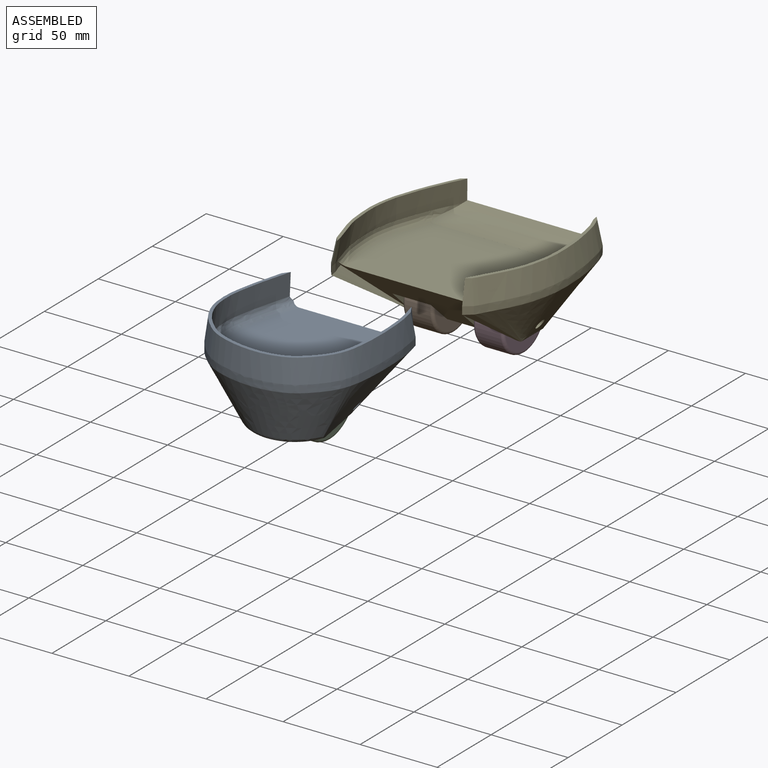
[diagram: assembled view]
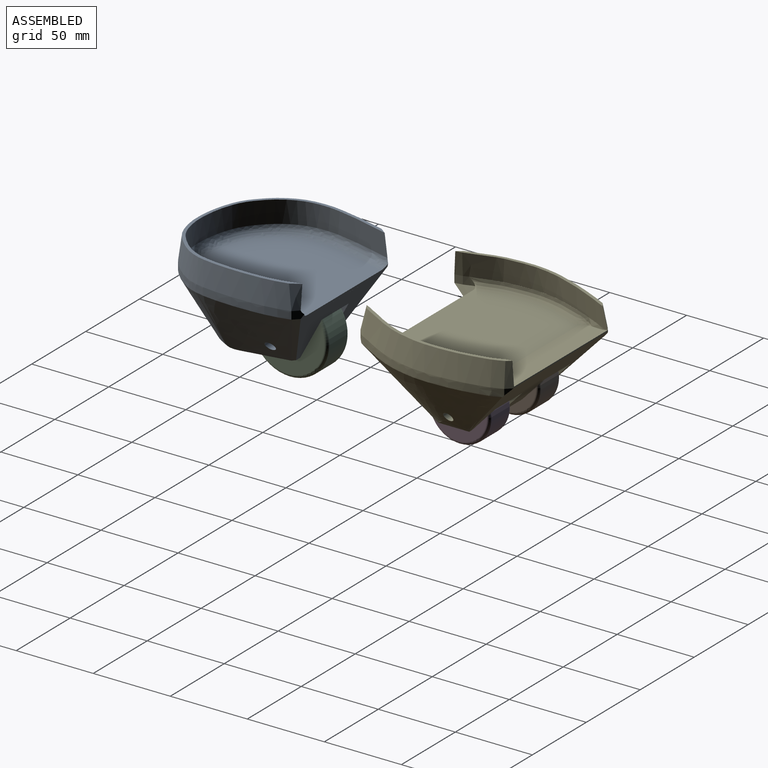
[diagram: assembled view, second angle]
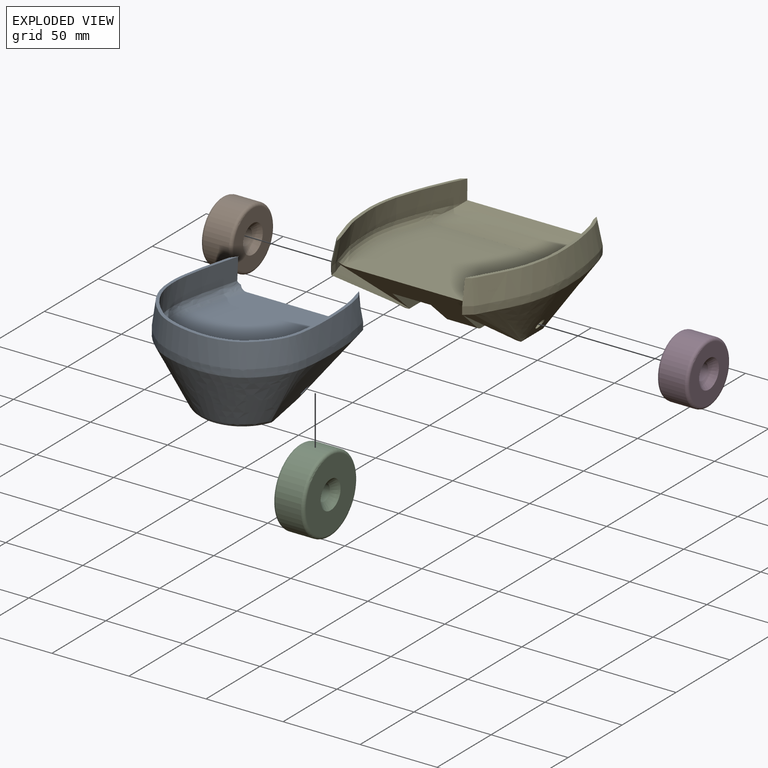
[diagram: exploded view]
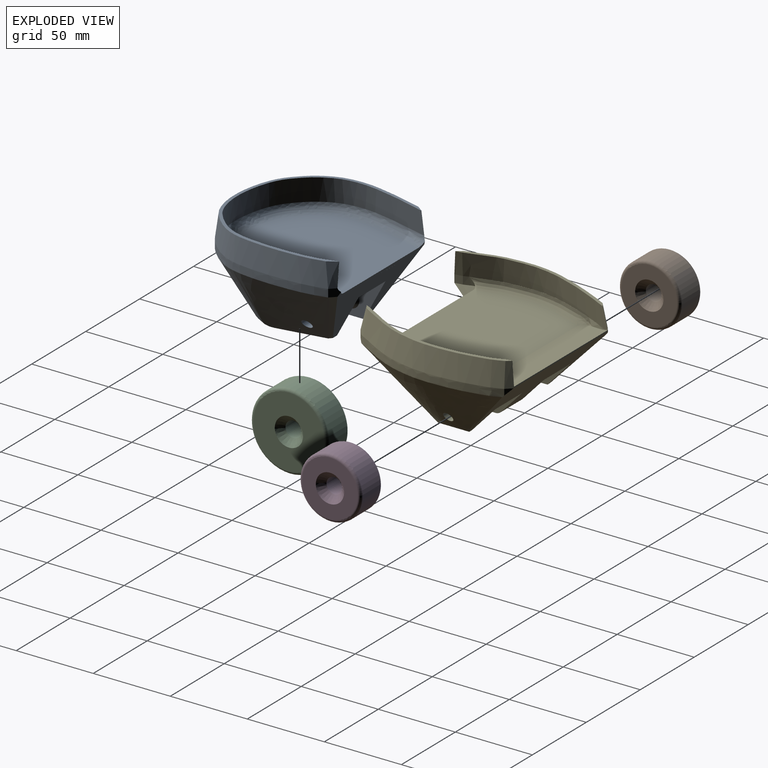
[diagram: exploded view, second angle]
ASSEMBLY  parts=5 mates=3
PART A: 40 faces, bbox 103.1x101.3x63 mm
  f0: bspline ~88.78x42.61mm, area 1473.5mm2, adj f2,f6,f7,f8,f11,f12,f13,f27
  f1: plane 8.07x2.83mm, normal (0,0,1), area 0.4mm2, adj f3,f28
  f2: plane 89.81x85.63mm, normal (0,0,1), area 6306.6mm2, adj f0,f38
  f3: bspline ~62.79x40mm, area 2366.7mm2, adj f1,f8,f9,f23,f25,f28,f36,f39
  f4: bspline ~62.28x40mm, area 2386.1mm2, adj f8,f9,f21,f26,f28,f37,f39
  f5: plane 25x14.83mm, normal (0,0,-1), area 370.8mm2, adj f6,f7,f10,f14
  f6: plane 54.01x40.03mm, normal (-1,0,0), area 1375.9mm2, adj f0,f5,f8,f10,f14,f16
  f7: plane 53.22x39.25mm, normal (1,0,0), area 1375.7mm2, adj f0,f5,f8,f10,f14,f18
  f8: plane 51.03x47.22mm, normal (0,0,-1), area 1112.2mm2, adj f0,f3,f4,f6,f7,f14,f36,f37
  f9: bspline ~93.31x40mm, area 3882.9mm2, adj f3,f4,f28,f30,f39
  f10: cylinder r=28mm len=25mm, axis (1,0,0), area 486.1mm2, adj f5,f6,f7,f12,f13
  f11: plane 25x0.02mm, normal (0,0,1), area 0.2mm2, adj f0,f12,f13
  f12: extruded ~25x11mm, area 312.2mm2, adj f0,f10,f11,f13
  f13: plane 11.18x6.1mm, normal (-1,0,0), area 0.2mm2, adj f0,f10,f11,f12
  f14: cylinder r=28mm len=37mm, axis (1,0,0), area 1167.6mm2, adj f5,f6,f7,f8
  f15: plane 8.4x8.4mm, normal (-1,0,0), area 26.2mm2, adj f16,f21
  f16: cone r=6mm half-angle=36.9deg, axis (1,0,0), area 96.1mm2, adj f6,f15
  f17: plane 8.4x8.4mm, normal (1,0,0), area 26.2mm2, adj f18,f20
  f18: cone r=6mm half-angle=36.9deg, axis (-1,0,0), area 96.1mm2, adj f7,f17
  f19: plane 6.1x6.1mm, normal (1,0,0), area 14.7mm2, adj f20,f22
  f20: cylinder r=3.05mm len=6.1mm, axis (-1,0,0), area 93.9mm2, adj f17,f19
  f21: cylinder r=3.05mm len=19.79mm, axis (-1,0,0), area 333mm2, adj f4,f15
  f22: cylinder r=2.15mm len=6.5mm, axis (1,0,0), area 87.8mm2, adj f19,f24
  f23: cylinder r=4mm len=8.04mm, axis (1,0,0), area 127.8mm2, adj f3,f24
  f24: plane 8x8mm, normal (-1,0,0), area 35.7mm2, adj f22,f23
  f25: plane 9.52x2.62mm, normal (0,0,-1), area 0.2mm2, adj f3,f27,f28
  f26: plane 7.82x2.08mm, normal (0,0,-1), area 0.2mm2, adj f4,f28,f29
  f27: plane 5.48x5.46mm, normal (-0.71,0.71,0), area 29.8mm2, adj f0,f25,f28,f32,f36,f38
  f28: extruded ~100.01x92.23mm, area 1233mm2, adj f1,f3,f4,f9,f25,f26,f27,f29
  f29: plane 5.49x5.48mm, normal (0.7,0.71,0), area 29.8mm2, adj f0,f26,f28,f34,f37,f38
  f30: plane 9.32x5.86mm, normal (0,0,-1), area 0.4mm2, adj f9,f28
  f31: plane 96.34x94.12mm, normal (0,0,1), area 535.9mm2, adj f32,f33,f34,f35
  f32: bspline ~15x5.12mm, area 77.7mm2, adj f27,f31,f33,f35
  f33: bspline ~100.04x92.23mm, area 3624.6mm2, adj f28,f31,f32,f34
  f34: bspline ~15x6.06mm, area 91.7mm2, adj f29,f31,f33,f35
  f35: bspline ~95.03x93.3mm, area 3641.3mm2, adj f31,f32,f34,f38
  f36: bspline ~40x24.86mm, area 186.1mm2, adj f0,f3,f8,f27
  f37: bspline ~40x29.94mm, area 194.6mm2, adj f0,f4,f8,f29
  f38: bspline ~95.74x95.03mm, area 2008.4mm2, adj f0,f2,f27,f29,f35
  f39: bspline ~64.89x40.05mm, area 438.5mm2, adj f3,f4,f8,f9
PART B: 8 faces, bbox 43.3x43.3x20 mm
  f0: cylinder r=5.1mm len=11.8mm, axis (0,0,-1), area 378.1mm2, adj f4,f5
  f1: cylinder r=20mm len=40mm, axis (0,0,-1), area 2010.6mm2, adj f6,f7
  f2: plane 36x36mm, normal (0,0,1), area 752mm2, adj f5,f7
  f3: plane 36x36mm, normal (0,0,-1), area 752mm2, adj f4,f6
  f4: cone r=9.2mm half-angle=45deg, axis (0,0,-1), area 260.5mm2, adj f0,f3
  f5: cone r=5.1mm half-angle=45deg, axis (0,0,1), area 260.5mm2, adj f0,f2
  f6: torus R=18mm, axis (0,0,1), area 380.4mm2, adj f1,f3
  f7: torus R=18mm, axis (0,0,1), area 380.4mm2, adj f1,f2
PART C: 8 faces, bbox 54.1x54.1x20 mm
  f0: cylinder r=5.1mm len=11.8mm, axis (0,0,-1), area 378.1mm2, adj f4,f5
  f1: cylinder r=25mm len=50mm, axis (0,0,-1), area 2513.3mm2, adj f6,f7
  f2: plane 46x46mm, normal (0,0,1), area 1396mm2, adj f5,f7
  f3: plane 46x46mm, normal (0,0,-1), area 1396mm2, adj f4,f6
  f4: cone r=9.2mm half-angle=45deg, axis (0,0,-1), area 260.5mm2, adj f0,f3
  f5: cone r=5.1mm half-angle=45deg, axis (0,0,1), area 260.5mm2, adj f0,f2
  f6: torus R=23mm, axis (0,0,1), area 479.1mm2, adj f1,f3
  f7: torus R=23mm, axis (0,0,1), area 479.1mm2, adj f1,f2
PART D: same geometry as B
PART E: 76 faces, bbox 122.2x109.9x55.6 mm
  f0: plane 97.23x43.01mm, normal (0,-0.68,-0.73), area 3160.1mm2, adj f1,f2,f3,f6,f7,f24,f27,f31
  f1: plane 106.75x71.13mm, normal (0,0,1), area 7163.4mm2, adj f0,f59,f74,f75
  f2: plane 51.29x30mm, normal (1,0,0), area 966.7mm2, adj f0,f4,f8,f11,f23,f26,f27,f57
  f3: plane 51.29x30mm, normal (-1,0,0), area 967.8mm2, adj f0,f4,f9,f11,f19,f26,f27
  f4: plane 25x4.29mm, normal (0,0,-1), area 107.1mm2, adj f2,f3,f26,f27
  f5: plane 25x4.29mm, normal (0,0,-1), area 107.1mm2, adj f6,f7,f24,f25
  f6: plane 51.29x30mm, normal (1,0,0), area 967.8mm2, adj f0,f5,f10,f11,f13,f24,f25
  f7: plane 51.29x30mm, normal (-1,0,0), area 966.7mm2, adj f0,f5,f8,f11,f16,f24,f25,f57
  f8: plane 20x15.85mm, normal (0,0,-1), area 317mm2, adj f2,f7,f57,f58
  f9: plane 20.25x2.5mm, normal (0,0,-1), area 50.6mm2, adj f3,f11,f65,f70,f71,f72,f73
  f10: plane 20.5x2.5mm, normal (0,0,-1), area 51.3mm2, adj f6,f11,f64,f66,f67,f68,f69
  f11: plane 96.21x40.29mm, normal (0,0.73,-0.68), area 3587.5mm2, adj f2,f3,f6,f7,f9,f10,f25,f26
  f12: plane 8.4x8.4mm, normal (1,0,0), area 26.2mm2, adj f13,f14
  f13: cone r=6mm half-angle=39.3deg, axis (-1,0,0), area 91.1mm2, adj f6,f12
  f14: cylinder r=3.05mm len=6.1mm, axis (1,0,0), area 42.2mm2, adj f12,f18
  f15: plane 8.4x8.4mm, normal (-1,0,0), area 26.2mm2, adj f16,f17
  f16: cone r=4.2mm half-angle=36.9deg, axis (1,0,0), area 96.1mm2, adj f7,f15
  f17: cylinder r=3.05mm len=24.8mm, axis (-1,0,0), area 475.3mm2, adj f15,f22
  f18: plane 6.1x6.1mm, normal (1,0,0), area 14.7mm2, adj f14,f54
  f19: cone r=6mm half-angle=39.3deg, axis (1,0,0), area 91.1mm2, adj f3,f20
  f20: plane 8.4x8.4mm, normal (-1,0,0), area 26.2mm2, adj f19,f21
  f21: cylinder r=3.05mm len=12mm, axis (-1,0,0), area 190.6mm2, adj f20,f65
  f22: plane 8.4x8.4mm, normal (1,0,0), area 26.2mm2, adj f17,f23
  f23: cone r=4.2mm half-angle=36.9deg, axis (-1,0,0), area 96.1mm2, adj f2,f22
  f24: cylinder r=30.08mm len=25mm, axis (-1,0,0), area 734.9mm2, adj f0,f5,f6,f7
  f25: cylinder r=30.08mm len=25mm, axis (-1,0,0), area 694.2mm2, adj f5,f6,f7,f11
  f26: cylinder r=30.08mm len=25mm, axis (1,0,0), area 694.2mm2, adj f2,f3,f4,f11
  f27: cylinder r=30.08mm len=25mm, axis (1,0,0), area 734.9mm2, adj f0,f2,f3,f4
  f28: extruded ~101.3x19.13mm, area 526.9mm2, adj f11,f29,f33,f41,f64,f68
  f29: plane 5x3.95mm, normal (-0.79,-0.61,0), area 25mm2, adj f28,f30,f42,f67
  f30: plane 5x4.96mm, normal (0.99,0.16,0), area 25.1mm2, adj f29,f31,f43,f66
  f31: extruded ~98.69x18.59mm, area 35.1mm2, adj f0,f30,f44,f69,f75
  f32: plane 3.57x1.84mm, normal (0.91,-0.41,0), area 1.4mm2, adj f45,f60,f75
  f33: plane 3.74x3.05mm, normal (-0.6,0.8,0), area 7.1mm2, adj f11,f28,f46
  f34: extruded ~101.53x20.21mm, area 534.2mm2, adj f11,f35,f39,f53,f65,f71
  f35: plane 3.93x3.65mm, normal (0.73,0.68,0), area 9.8mm2, adj f11,f34,f48
  f36: plane 4.65x2.01mm, normal (-0.96,-0.26,0), area 2.6mm2, adj f49,f60,f74
  f37: extruded ~9x5.24mm, area 36.6mm2, adj f0,f38,f50,f72
  f38: plane 5.46x5mm, normal (-0.88,0.47,0), area 31mm2, adj f37,f39,f51,f73
  f39: plane 5x4.92mm, normal (0.62,-0.78,0), area 31.5mm2, adj f34,f38,f52,f70
  f40: plane 104.48x22.56mm, normal (0,0,1), area 208.9mm2, adj f41,f42,f43,f44,f45,f46
  f41: bspline ~101.3x21.77mm, area 1594.6mm2, adj f28,f40,f42,f46
  f42: bspline ~15x5.48mm, area 70.9mm2, adj f29,f40,f41,f43
  f43: bspline ~15x6.06mm, area 68.6mm2, adj f30,f40,f42,f44
  f44: bspline ~98.69x20.99mm, area 1551.8mm2, adj f31,f40,f43,f45
  f45: bspline ~15x5.58mm, area 65.1mm2, adj f32,f40,f44,f46,f60
  f46: bspline ~15x5.78mm, area 68.4mm2, adj f11,f33,f40,f41,f45,f60,f62
  f47: plane 104.08x23.26mm, normal (0,0,1), area 215.1mm2, adj f48,f49,f50,f51,f52,f53
  f48: bspline ~15x5.16mm, area 68.8mm2, adj f11,f35,f47,f49,f53,f60,f63
  f49: bspline ~15x5.83mm, area 65.3mm2, adj f36,f47,f48,f50,f60
  f50: bspline ~99.02x21.68mm, area 1565.6mm2, adj f37,f47,f49,f51,f74
  f51: bspline ~15x6.99mm, area 75.9mm2, adj f38,f47,f50,f52
  f52: bspline ~15x5.77mm, area 78mm2, adj f39,f47,f51,f53
  f53: bspline ~101.53x22.6mm, area 1611.4mm2, adj f34,f47,f48,f52
  f54: cylinder r=2.15mm len=4.3mm, axis (1,0,0), area 54mm2, adj f18,f56
  f55: cylinder r=4mm len=8mm, axis (-1,0,0), area 85.2mm2, adj f56,f64
  f56: plane 8x8mm, normal (-1,0,0), area 35.7mm2, adj f54,f55
  f57: cylinder r=5mm len=20mm, axis (1,0,0), area 75.1mm2, adj f0,f2,f7,f8
  f58: cylinder r=5mm len=20mm, axis (1,0,0), area 82.2mm2, adj f2,f7,f8,f11
  f59: plane 94.18x0.01mm, normal (0,-1,0), area 0mm2, adj f1,f60
  f60: bspline ~106.99x23.75mm, area 2324.4mm2, adj f32,f36,f45,f46,f48,f49,f59,f61
  f61: plane 87.06x0.75mm, normal (0,1,0), area 65mm2, adj f11,f60,f62,f63
  f62: bspline ~10.86x7.03mm, area 0.3mm2, adj f11,f46,f60,f61
  f63: bspline ~10.86x6mm, area 0.2mm2, adj f11,f48,f60,f61
  f64: bspline ~90x35mm, area 2282.6mm2, adj f10,f11,f28,f55,f68
  f65: bspline ~90x35mm, area 2357.4mm2, adj f9,f11,f21,f34,f71
  f66: bspline ~50.59x35mm, area 107.7mm2, adj f10,f30,f67,f69
  f67: bspline ~50.43x35mm, area 206.3mm2, adj f10,f29,f66,f68
  f68: bspline ~46.99x35mm, area 234.9mm2, adj f10,f28,f64,f67
  f69: bspline ~45.98x35mm, area 207.7mm2, adj f0,f10,f31,f66
  f70: bspline ~51.71x35mm, area 240mm2, adj f9,f39,f71,f73
  f71: bspline ~48.03x35mm, area 273.3mm2, adj f9,f34,f65,f70
  f72: bspline ~46.5x35mm, area 231mm2, adj f0,f9,f37,f73
  f73: bspline ~51.79x35mm, area 134.4mm2, adj f9,f38,f70,f72
  f74: bspline ~99.87x22.9mm, area 697.6mm2, adj f0,f1,f36,f50,f60
  f75: bspline ~98.04x23.47mm, area 676.1mm2, adj f0,f1,f31,f32,f60
PLACE A t=(-17.18,-148.96,-11.9)mm
PLACE B rot(axis=(0.71,0,0.71),180deg) t=(-29.92,-19.73,-38.11)mm
PLACE C rot(axis=(0,1,0),90deg) t=(-17.08,-152.96,-41.9)mm
PLACE D rot(axis=(0,1,0),90deg) t=(15.68,-19.73,-38.11)mm
PLACE E rot(axis=(0.03,1,0),0deg) t=(-7.12,-24.73,-11.11)mm
MATE revolute B.f0 <-> E.f13  axis (-1,0,0) through (-39.92,-19.73,-38.11)mm
MATE revolute C.f0 <-> A.f10  axis (1,0,0) through (-7.08,-152.96,-41.9)mm
MATE revolute D.f0 <-> E.f13  axis (1,0,0) through (25.68,-19.73,-38.11)mm
